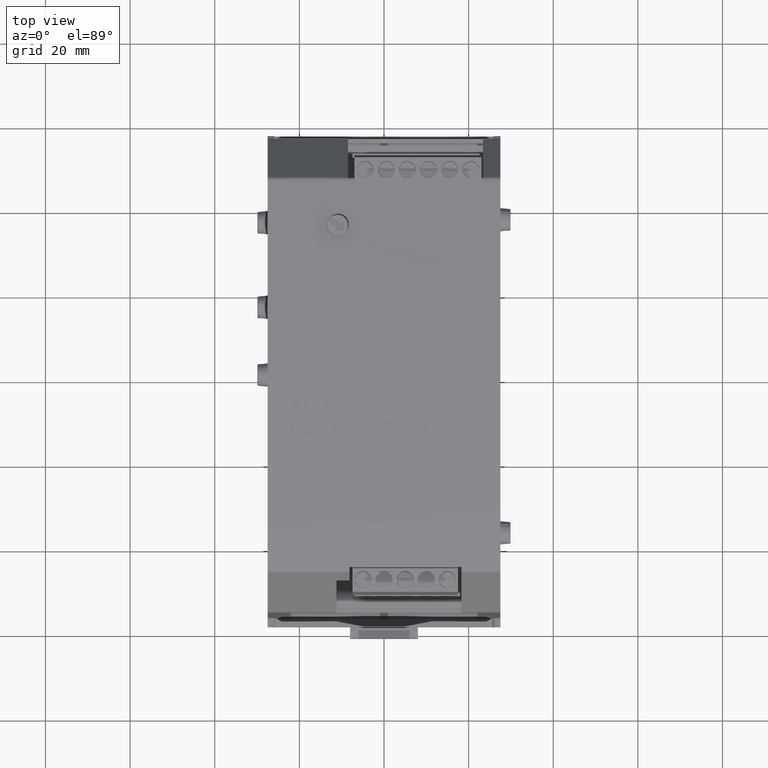
[diagram: clean part render]
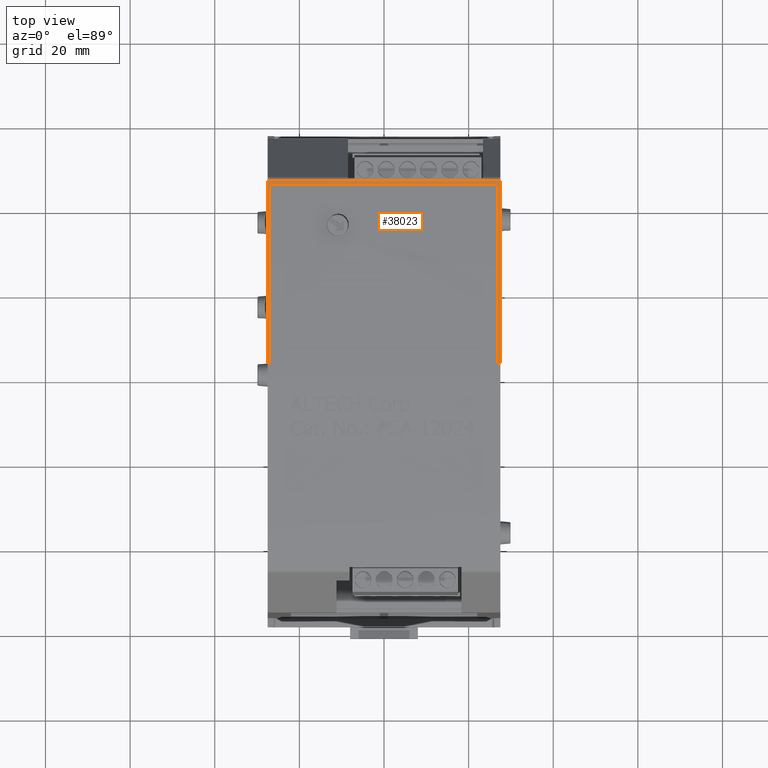
[diagram: same view with one face highlighted and labeled with its STEP entity id]
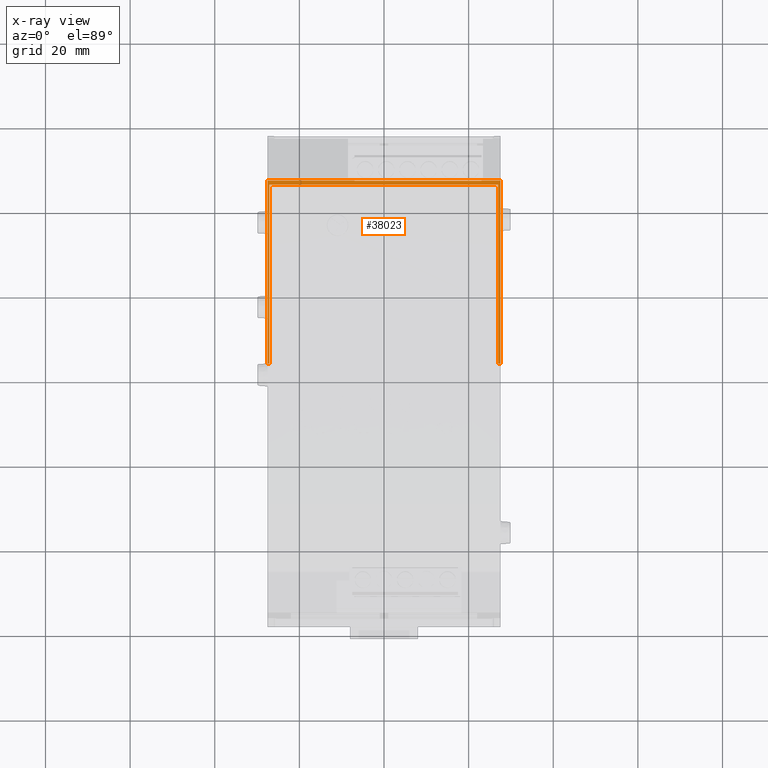
[diagram: x-ray of the same camera — body ghosted, the highlighted face saturated]
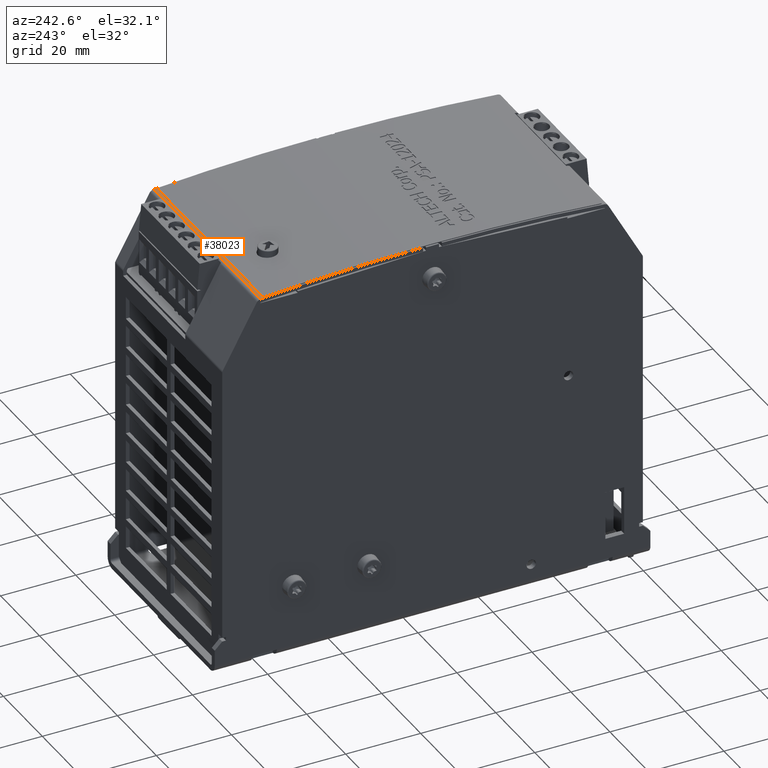
[diagram: same view with one face highlighted and labeled with its STEP entity id]
A machine part, top view. The second image highlights one B-rep face of the part: STEP entity #38023.
The next image is the same camera in x-ray: the body ghosted, the highlighted face saturated — about 0% of this face is hidden behind the body in this view.
A second angle (auxiliary view) of the same face is appended — the face is thin or edge-on in the first view.
In plain terms, the highlighted cylindrical surface (partial cylindrical patch) has radius 541.507 mm, axis along (-1, 0, 0).
Its self-contained STEP definition (entity closure, byte-faithful):
#480=CARTESIAN_POINT('',(-1.068169326593714,0.098457790772829,4.051157788674852));
#481=VERTEX_POINT('',#480);
#548=CARTESIAN_POINT('',(1.06182292687699,0.098457790772829,4.051157788674852));
#549=VERTEX_POINT('',#548);
#621=CARTESIAN_POINT('',(-1.068169326593714,1.766602806201115,3.983319728138901));
#622=VERTEX_POINT('',#621);
#629=CARTESIAN_POINT('',(-1.068169326593714,0.066929133864541,-17.267984561746918));
#630=DIRECTION('',(-1.0,0.0,0.0));
#631=DIRECTION('',(0.0,-2.938006E-013,1.0));
#632=AXIS2_PLACEMENT_3D('',#629,#630,#631);
#633=CIRCLE('',#632,21.319165664109686);
#634=EDGE_CURVE('',#481,#622,#633,.T.);
#694=CARTESIAN_POINT('',(1.06182292687699,1.766602806201115,3.983319728138901));
#695=VERTEX_POINT('',#694);
#702=CARTESIAN_POINT('',(-1.068169326593714,1.766602806201115,3.983319728138901));
#703=DIRECTION('',(1.0,0.0,0.0));
#704=VECTOR('',#703,2.129992253470704);
#705=LINE('',#702,#704);
#706=EDGE_CURVE('',#622,#695,#705,.T.);
#743=CARTESIAN_POINT('',(1.06182292687699,0.066929133864541,-17.267984561746918));
#744=DIRECTION('',(1.0,0.0,0.0));
#745=DIRECTION('',(0.0,-2.938006E-013,1.0));
#746=AXIS2_PLACEMENT_3D('',#743,#744,#745);
#747=CIRCLE('',#746,21.319165664109686);
#748=EDGE_CURVE('',#695,#549,#747,.T.);
#29907=CARTESIAN_POINT('',(-0.274338582677101,1.801900937248484,3.980467086672459));
#29908=VERTEX_POINT('',#29907);
#29909=CARTESIAN_POINT('',(-0.274338582677101,1.804041199737872,3.980292222132534));
#29910=VERTEX_POINT('',#29909);
#29911=CARTESIAN_POINT('',(-0.274338582677101,0.066929133864541,-17.267984561746918));
#29912=DIRECTION('',(-1.0,0.0,0.0));
#29913=DIRECTION('',(0.0,-2.938006E-013,1.0));
#29914=AXIS2_PLACEMENT_3D('',#29911,#29912,#29913);
#29915=CIRCLE('',#29914,21.319165664109686);
#29916=EDGE_CURVE('',#29908,#29910,#29915,.T.);
#32869=CARTESIAN_POINT('',(-1.082677165354347,1.804041199737872,3.980292222132534));
#32870=VERTEX_POINT('',#32869);
#32878=CARTESIAN_POINT('',(-1.082677165354347,1.804041199737872,3.980292222132534));
#32879=DIRECTION('',(1.0,0.0,0.0));
#32880=VECTOR('',#32879,0.808338582677246);
#32881=LINE('',#32878,#32880);
#32882=EDGE_CURVE('',#32870,#29910,#32881,.T.);
#37956=CARTESIAN_POINT('',(-1.835802E-014,0.066929133864541,-17.267984561746918));
#37957=DIRECTION('',(-1.0,0.0,0.0));
#37958=DIRECTION('',(0.0,-2.938006E-013,1.0));
#37959=AXIS2_PLACEMENT_3D('',#37956,#37957,#37958);
#37960=CYLINDRICAL_SURFACE('',#37959,21.319165664109686);
#37961=ORIENTED_EDGE('',*,*,#748,.T.);
#37962=CARTESIAN_POINT('',(1.082677165354315,0.098457790772829,4.051157788674852));
#37963=VERTEX_POINT('',#37962);
#37964=CARTESIAN_POINT('',(1.061822926876991,0.098457790772829,4.051157788674852));
#37965=DIRECTION('',(1.0,0.0,0.0));
#37966=VECTOR('',#37965,0.020854238477324);
#37967=LINE('',#37964,#37966);
#37968=EDGE_CURVE('',#549,#37963,#37967,.T.);
#37969=ORIENTED_EDGE('',*,*,#37968,.T.);
#37970=CARTESIAN_POINT('',(1.082677165354315,1.804041199737872,3.980292222132538));
#37971=VERTEX_POINT('',#37970);
#37972=CARTESIAN_POINT('',(1.082677165354315,0.066929133864541,-17.267984561746918));
#37973=DIRECTION('',(-1.0,0.0,0.0));
#37974=DIRECTION('',(0.0,0.001478887936096,0.999998906444638));
#37975=AXIS2_PLACEMENT_3D('',#37972,#37973,#37974);
#37976=CIRCLE('',#37975,21.319165664109686);
#37977=EDGE_CURVE('',#37963,#37971,#37976,.T.);
#37978=ORIENTED_EDGE('',*,*,#37977,.T.);
#37979=CARTESIAN_POINT('',(0.906763779527623,1.804041199737872,3.980292222132534));
#37980=VERTEX_POINT('',#37979);
#37981=CARTESIAN_POINT('',(0.906763779527623,1.804041199737872,3.980292222132534));
#37982=DIRECTION('',(1.0,0.0,0.0));
#37983=VECTOR('',#37982,0.175913385826692);
#37984=LINE('',#37981,#37983);
#37985=EDGE_CURVE('',#37980,#37971,#37984,.T.);
#37986=ORIENTED_EDGE('',*,*,#37985,.F.);
#37987=CARTESIAN_POINT('',(0.906763779527623,1.801900937248483,3.980467086672459));
#37988=VERTEX_POINT('',#37987);
#37989=CARTESIAN_POINT('',(0.906763779527623,0.066929133864541,-17.267984561746918));
#37990=DIRECTION('',(1.0,0.0,0.0));
#37991=DIRECTION('',(0.0,-2.938006E-013,1.0));
#37992=AXIS2_PLACEMENT_3D('',#37989,#37990,#37991);
#37993=CIRCLE('',#37992,21.319165664109686);
#37994=EDGE_CURVE('',#37980,#37988,#37993,.T.);
#37995=ORIENTED_EDGE('',*,*,#37994,.T.);
#37996=CARTESIAN_POINT('',(0.906763779527623,1.801900937248483,3.980467086672462));
#37997=DIRECTION('',(-1.0,0.0,0.0));
#37998=VECTOR('',#37997,1.181102362204725);
#37999=LINE('',#37996,#37998);
#38000=EDGE_CURVE('',#37988,#29908,#37999,.T.);
#38001=ORIENTED_EDGE('',*,*,#38000,.T.);
#38002=ORIENTED_EDGE('',*,*,#29916,.T.);
#38003=ORIENTED_EDGE('',*,*,#32882,.F.);
#38004=CARTESIAN_POINT('',(-1.082677165354348,0.098457790772829,4.051157788674852));
#38005=VERTEX_POINT('',#38004);
#38006=CARTESIAN_POINT('',(-1.082677165354347,0.066929133864541,-17.267984561746918));
#38007=DIRECTION('',(-1.0,0.0,0.0));
#38008=DIRECTION('',(0.0,0.001478887936096,0.999998906444638));
#38009=AXIS2_PLACEMENT_3D('',#38006,#38007,#38008);
#38010=CIRCLE('',#38009,21.319165664109686);
#38011=EDGE_CURVE('',#38005,#32870,#38010,.T.);
#38012=ORIENTED_EDGE('',*,*,#38011,.F.);
#38013=CARTESIAN_POINT('',(-1.082677165354348,0.098457790772829,4.051157788674852));
#38014=DIRECTION('',(1.0,0.0,0.0));
#38015=VECTOR('',#38014,0.014507838760634);
#38016=LINE('',#38013,#38015);
#38017=EDGE_CURVE('',#38005,#481,#38016,.T.);
#38018=ORIENTED_EDGE('',*,*,#38017,.T.);
#38019=ORIENTED_EDGE('',*,*,#634,.T.);
#38020=ORIENTED_EDGE('',*,*,#706,.T.);
#38021=EDGE_LOOP('',(#37961,#37969,#37978,#37986,#37995,#38001,#38002,#38003,#38012,#38018,#38019,#38020));
#38022=FACE_OUTER_BOUND('',#38021,.T.);
#38023=ADVANCED_FACE('',(#38022),#37960,.T.);